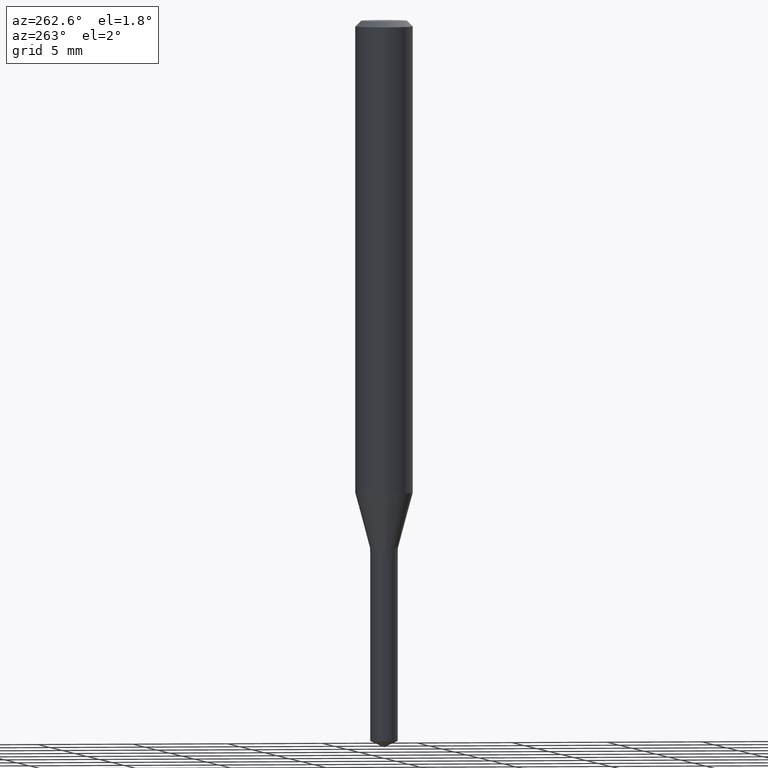
[diagram: clean part render]
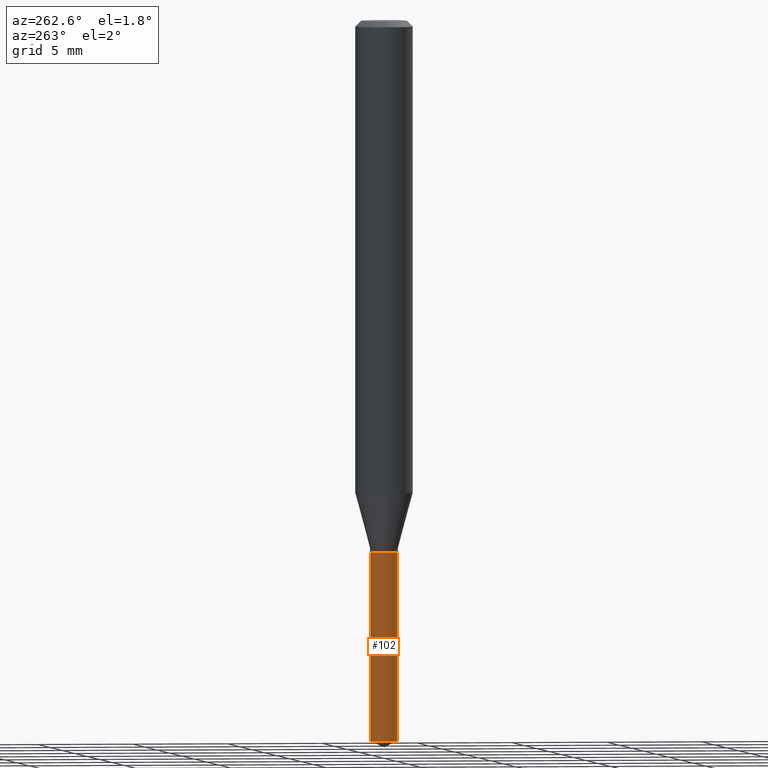
[diagram: same view with one face highlighted and labeled with its STEP entity id]
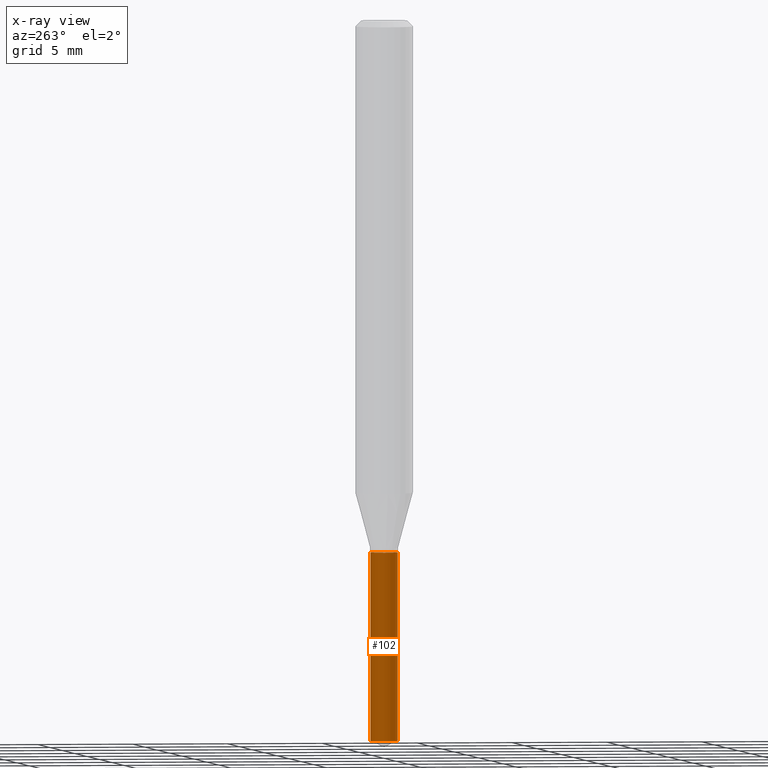
[diagram: x-ray of the same camera — body ghosted, the highlighted face saturated]
A machine part, auxiliary view. The second image highlights one B-rep face of the part: STEP entity #102.
The next image is the same camera in x-ray: the body ghosted, the highlighted face saturated — about 0% of this face is hidden behind the body in this view.
In plain terms, the highlighted cylindrical surface (edge-blend (fillet) strip) has radius 0.7252 mm, axis along (-0, 0, 1).
Its self-contained STEP definition (entity closure, byte-faithful):
#12 = CIRCLE ( 'NONE', #455, 0.02854999999999999899 ) ;
#13 = CARTESIAN_POINT ( 'NONE',  ( 2.676565608369631794E-29, -3.821426325363822773E-15, -1.094499999999999806 ) ) ;
#25 = VERTEX_POINT ( 'NONE', #226 ) ;
#30 = EDGE_LOOP ( 'NONE', ( #114, #327, #485, #295 ) ) ;
#53 = VECTOR ( 'NONE', #303, 39.37007874015748143 ) ;
#54 = CARTESIAN_POINT ( 'NONE',  ( 2.028599510595448342E-16, 0.02854999999999481564, -1.482786916359674967 ) ) ;
#55 = AXIS2_PLACEMENT_3D ( 'NONE', #13, #362, #197 ) ;
#59 = DIRECTION ( 'NONE',  ( -6.982962677686265133E-15, -1.000000000000000000, 0.000000000000000000 ) ) ;
#102 = ADVANCED_FACE ( 'NONE', ( #321 ), #425, .T. ) ;
#114 = ORIENTED_EDGE ( 'NONE', *, *, #466, .F. ) ;
#139 = CARTESIAN_POINT ( 'NONE',  ( -1.993635844479161093E-16, -0.02855000000000381885, -1.094499999999999806 ) ) ;
#140 = EDGE_CURVE ( 'NONE', #254, #338, #315, .T. ) ;
#151 = CARTESIAN_POINT ( 'NONE',  ( 2.028599510595352939E-16, 0.02854999999999617566, -1.094500000000000028 ) ) ;
#164 = CARTESIAN_POINT ( 'NONE',  ( 3.626184356031370148E-29, -5.177015148886716837E-15, -1.482786916359674967 ) ) ;
#184 = EDGE_CURVE ( 'NONE', #25, #338, #12, .T. ) ;
#197 = DIRECTION ( 'NONE',  ( -6.982962677686265133E-15, -1.000000000000000000, 4.784322230585399479E-15 ) ) ;
#211 = CARTESIAN_POINT ( 'NONE',  ( -1.993635844479065690E-16, -0.02855000000000517194, -1.482786916359674967 ) ) ;
#214 = EDGE_CURVE ( 'NONE', #250, #254, #399, .T. ) ;
#226 = CARTESIAN_POINT ( 'NONE',  ( 2.028599510595448835E-16, 0.02854999999999617566, -1.094500000000000028 ) ) ;
#230 = LINE ( 'NONE', #151, #53 ) ;
#240 = DIRECTION ( 'NONE',  ( -6.982962677686265133E-15, -1.000000000000000000, 4.784322230585399479E-15 ) ) ;
#250 = VERTEX_POINT ( 'NONE', #54 ) ;
#254 = VERTEX_POINT ( 'NONE', #211 ) ;
#277 = CARTESIAN_POINT ( 'NONE',  ( 2.676565608369631794E-29, -3.821426325363822773E-15, -1.094499999999999806 ) ) ;
#279 = DIRECTION ( 'NONE',  ( -2.445662492480417196E-29, 3.491203969044364912E-15, 1.000000000000000000 ) ) ;
#295 = ORIENTED_EDGE ( 'NONE', *, *, #184, .F. ) ;
#303 = DIRECTION ( 'NONE',  ( -2.445662492480417196E-29, 3.491203969044364912E-15, 1.000000000000000000 ) ) ;
#315 = LINE ( 'NONE', #395, #365 ) ;
#321 = FACE_OUTER_BOUND ( 'NONE', #30, .T. ) ;
#327 = ORIENTED_EDGE ( 'NONE', *, *, #214, .T. ) ;
#338 = VERTEX_POINT ( 'NONE', #139 ) ;
#360 = DIRECTION ( 'NONE',  ( -2.445662492480417196E-29, 3.491203969044364518E-15, 1.000000000000000000 ) ) ;
#362 = DIRECTION ( 'NONE',  ( -2.445662492480417196E-29, 3.491203969044364518E-15, 1.000000000000000000 ) ) ;
#365 = VECTOR ( 'NONE', #279, 39.37007874015748143 ) ;
#384 = AXIS2_PLACEMENT_3D ( 'NONE', #164, #360, #59 ) ;
#395 = CARTESIAN_POINT ( 'NONE',  ( -1.993635844479161093E-16, -0.02855000000000381885, -1.094499999999999806 ) ) ;
#399 = CIRCLE ( 'NONE', #384, 0.02854999999999999899 ) ;
#425 = CYLINDRICAL_SURFACE ( 'NONE', #55, 0.02854999999999999899 ) ;
#426 = DIRECTION ( 'NONE',  ( -2.445662492480417196E-29, 3.491203969044364518E-15, 1.000000000000000000 ) ) ;
#455 = AXIS2_PLACEMENT_3D ( 'NONE', #277, #426, #240 ) ;
#466 = EDGE_CURVE ( 'NONE', #250, #25, #230, .T. ) ;
#485 = ORIENTED_EDGE ( 'NONE', *, *, #140, .T. ) ;